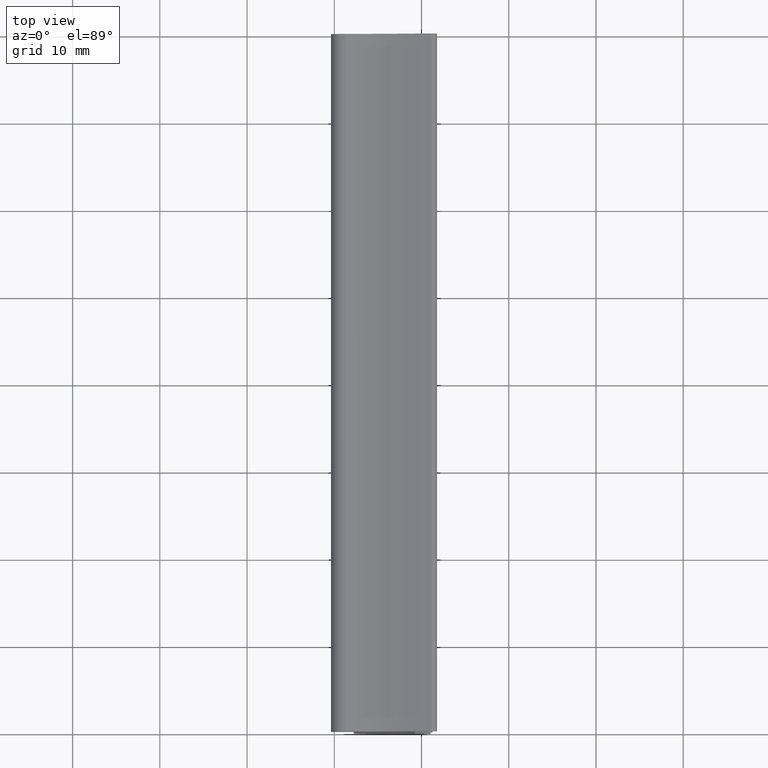
[diagram: clean part render]
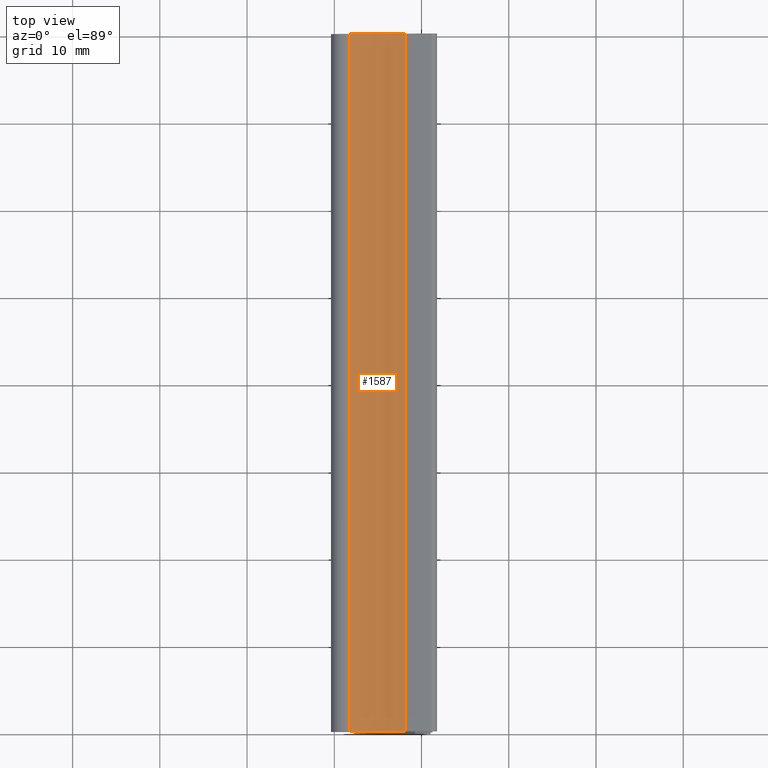
[diagram: same view with one face highlighted and labeled with its STEP entity id]
A machine part, top view. The second image highlights one B-rep face of the part: STEP entity #1587.
In plain terms, the highlighted cylindrical surface (partial cylindrical patch) has radius 20.153 mm, axis along (0, 1, 0).
Its self-contained STEP definition (entity closure, byte-faithful):
#21 = AXIS2_PLACEMENT_3D ( 'NONE', #522, #528, #526 ) ;
#24 = AXIS2_PLACEMENT_3D ( 'NONE', #532, #507, #508 ) ;
#227 = ORIENTED_EDGE ( 'NONE', *, *, #1936, .F. ) ;
#268 = ORIENTED_EDGE ( 'NONE', *, *, #2005, .F. ) ;
#280 = ORIENTED_EDGE ( 'NONE', *, *, #2002, .F. ) ;
#284 = EDGE_LOOP ( 'NONE', ( #227, #329, #280, #268 ) ) ;
#329 = ORIENTED_EDGE ( 'NONE', *, *, #1998, .T. ) ;
#507 = DIRECTION ( 'NONE',  ( 0.0000000000000000000, 1.000000000000000000, 0.0000000000000000000 ) ) ;
#508 = DIRECTION ( 'NONE',  ( 0.0000000000000000000, 0.0000000000000000000, 1.000000000000000000 ) ) ;
#513 = CARTESIAN_POINT ( 'NONE',  ( -8.202905406017968900, 80.00000000000000000, 19.16987706598321900 ) ) ;
#514 = DIRECTION ( 'NONE',  ( 0.0000000000000000000, 1.000000000000000000, 0.0000000000000000000 ) ) ;
#522 = CARTESIAN_POINT ( 'NONE',  ( -9.772012247774830100, 0.0000000000000000000, 39.26168054547440500 ) ) ;
#526 = DIRECTION ( 'NONE',  ( 0.0000000000000000000, 0.0000000000000000000, 1.000000000000000000 ) ) ;
#528 = DIRECTION ( 'NONE',  ( 0.0000000000000000000, 1.000000000000000000, 0.0000000000000000000 ) ) ;
#532 = CARTESIAN_POINT ( 'NONE',  ( -9.772012247774830100, 80.00000000000000000, 39.26168054547440500 ) ) ;
#585 = DIRECTION ( 'NONE',  ( -0.0000000000000000000, -1.000000000000000000, -0.0000000000000000000 ) ) ;
#587 = CARTESIAN_POINT ( 'NONE',  ( -1.844841410352467100, 80.00000000000000000, 20.73325303924326200 ) ) ;
#811 = CARTESIAN_POINT ( 'NONE',  ( -8.202905621048271800, 80.00000000000000000, 19.16987704919002800 ) ) ;
#968 = CARTESIAN_POINT ( 'NONE',  ( -9.772012247774830100, 80.00000000000000000, 39.26168054547440500 ) ) ;
#979 = DIRECTION ( 'NONE',  ( 0.0000000000000000000, 1.000000000000000000, 0.0000000000000000000 ) ) ;
#992 = DIRECTION ( 'NONE',  ( 0.0000000000000000000, 0.0000000000000000000, 1.000000000000000000 ) ) ;
#1047 = VERTEX_POINT ( 'NONE', #1098 ) ;
#1098 = CARTESIAN_POINT ( 'NONE',  ( -8.202905621048271800, 0.0000000000000000000, 19.16987704919002800 ) ) ;
#1122 = VERTEX_POINT ( 'NONE', #1218 ) ;
#1123 = VERTEX_POINT ( 'NONE', #1216 ) ;
#1177 = VERTEX_POINT ( 'NONE', #811 ) ;
#1216 = CARTESIAN_POINT ( 'NONE',  ( -1.844840645942340800, 80.00000000000000000, 20.73325336628722200 ) ) ;
#1218 = CARTESIAN_POINT ( 'NONE',  ( -1.844840645942340800, 0.0000000000000000000, 20.73325336628722200 ) ) ;
#1385 = CIRCLE ( 'NONE', #21, 20.15298149999999900 ) ;
#1400 = LINE ( 'NONE', #513, #1402 ) ;
#1402 = VECTOR ( 'NONE', #514, 1000.000000000000000 ) ;
#1417 = CIRCLE ( 'NONE', #24, 20.15298149999999900 ) ;
#1473 = VECTOR ( 'NONE', #585, 1000.000000000000000 ) ;
#1475 = LINE ( 'NONE', #587, #1473 ) ;
#1587 = ADVANCED_FACE ( 'NONE', ( #1607 ), #1718, .F. ) ;
#1607 = FACE_OUTER_BOUND ( 'NONE', #284, .T. ) ;
#1718 = CYLINDRICAL_SURFACE ( 'NONE', #2030, 20.15298149999999900 ) ;
#1936 = EDGE_CURVE ( 'NONE', #1123, #1122, #1475, .T. ) ;
#1998 = EDGE_CURVE ( 'NONE', #1123, #1177, #1417, .T. ) ;
#2002 = EDGE_CURVE ( 'NONE', #1047, #1177, #1400, .T. ) ;
#2005 = EDGE_CURVE ( 'NONE', #1122, #1047, #1385, .T. ) ;
#2030 = AXIS2_PLACEMENT_3D ( 'NONE', #968, #979, #992 ) ;